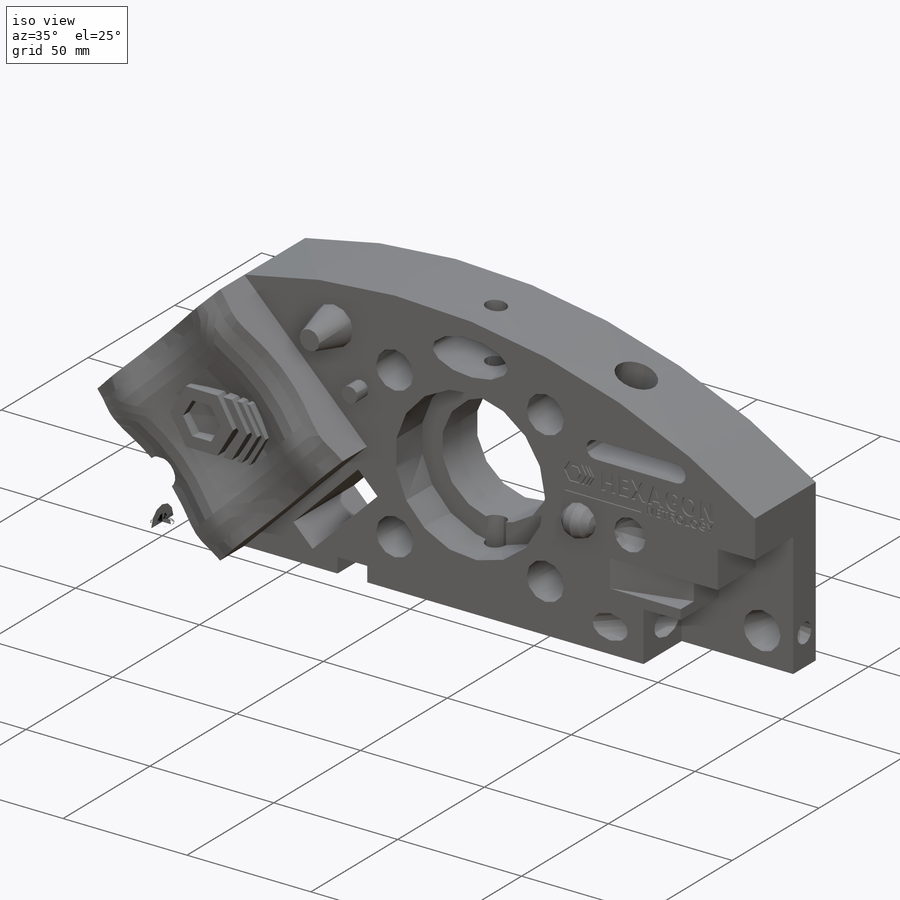
[diagram: iso view]
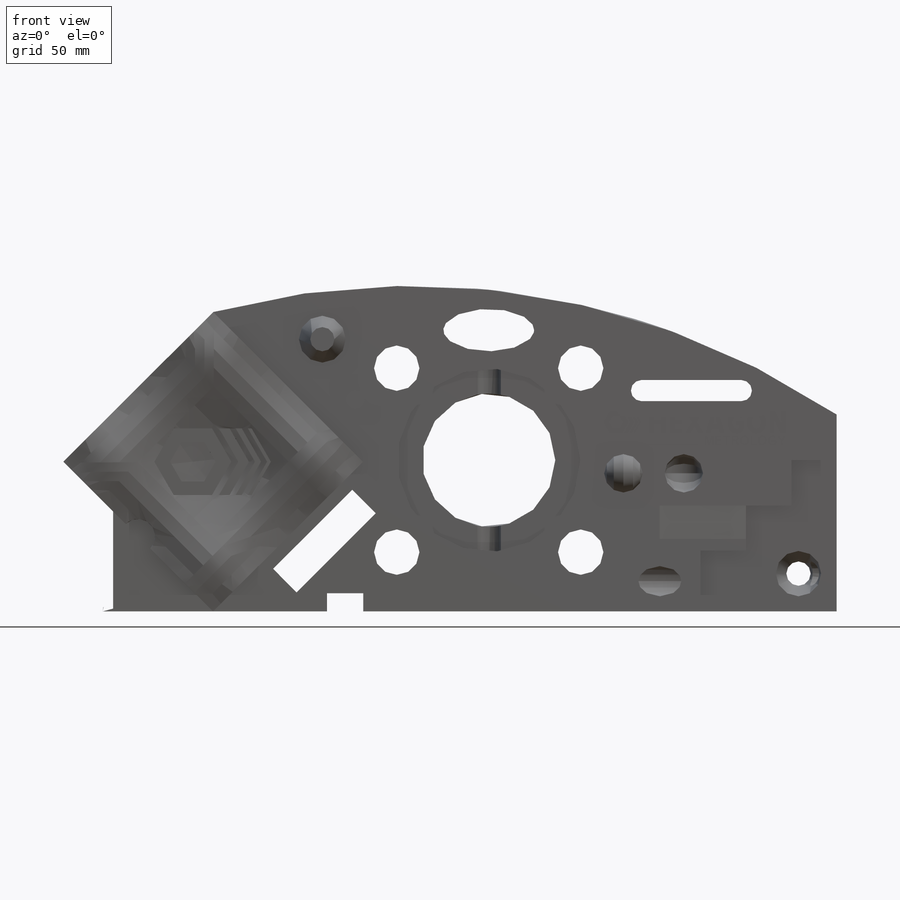
[diagram: front view]
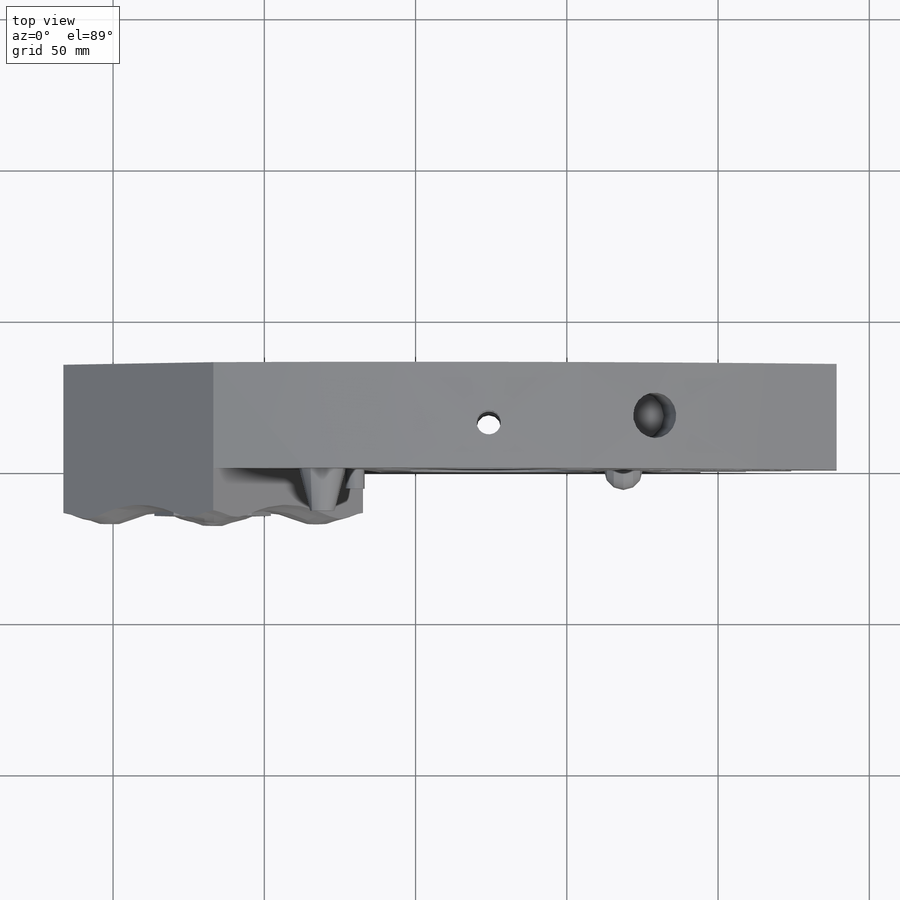
[diagram: top view]
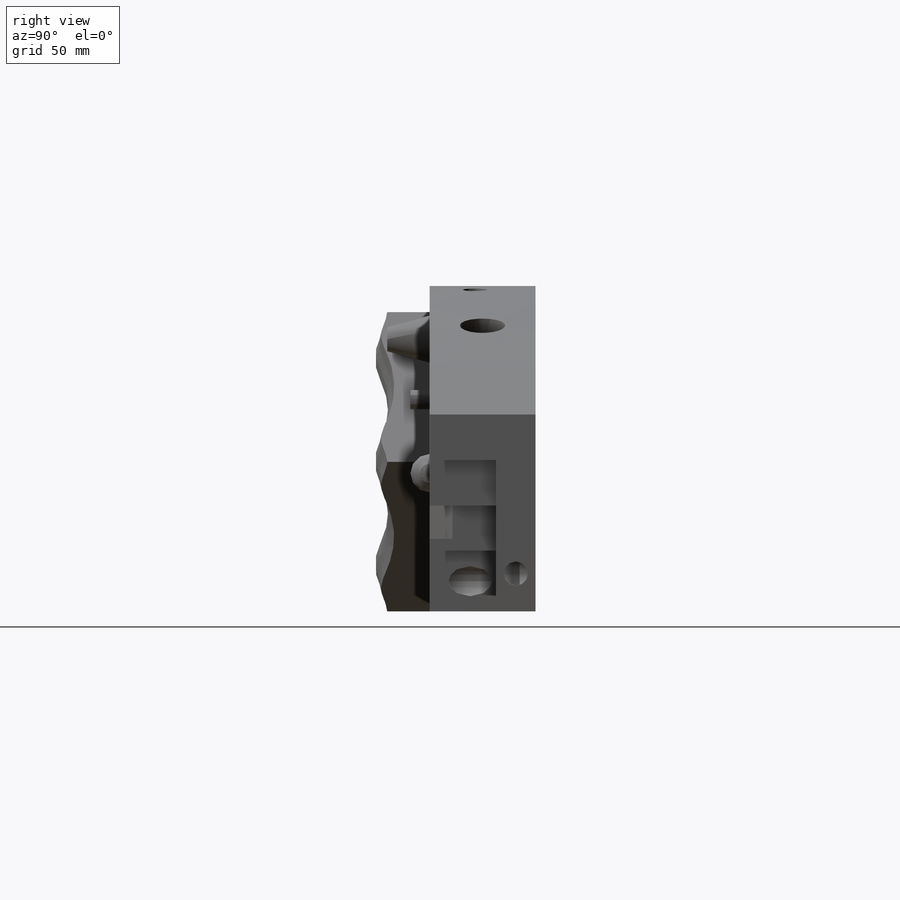
[diagram: right view]
SOLIDWORKS PART (.sldprt)
format: sldprt  version: not decoded by parser v0  size: 2,626,048 bytes
history: native  units: mm
features: sketch x60, cut_extrude x34, extrude x14, hole x3, plane x3, material x1, pattern_circular x1, cut_revolve x1, revolve x1, move_body x1 (+15 scaffold rows collapsed; 2 parser-record rows omitted)
feature tree (136):
  scaffold x15  (default folders/planes/origin — collapsed)
  material  "ABS"
  sketch  "Sketch1"  dims[c1.D2=253.25mm c1.D1=~70.426584mm c2.D1=135.0deg c3.D1=65.1mm c3.D3=70.0mm c3.D4=33.1mm c4.D3=~38.456974mm c5.D3=45.0deg c6.D3=~255.575467mm c6.D4=~33.118616mm c6.D1=70.0mm c7.D1=45.0deg c8.D1=70.0mm c9.D1=45.0deg]
  extrude  "Extrude2"  Depth=22mm
  sketch  "Sketch2"  dims[D1=70.0mm]
  cut_extrude  "Cut-Extrude1"  Depth=22mm
  sketch  "Sketch32"
  sketch  "Sketch3"  dims[c1.D1=~70.039392mm c2.D1=~44.951404deg c3.D1=~70.039392mm c4.D1=~44.951404deg c5.D1=~70.039392mm c6.D1=~44.951404deg c7.D1=0.0mm]
  extrude  "Extrude3"  Depth=14mm
  sketch  "Sketch4"  dims[D1=20.0mm]
  cut_extrude  "Cut-Extrude2"  Depth=22mm
  sketch  "Sketch5"  dims[c1.D1=115.0mm c2.D1=~134.184664deg]
  hole  "CBORE for M5 SBHCS1"  Diameter=44mm Depth=35mm
  sketch  "3DSketch1"  dims[D1=115.0mm D2=50.0mm D3=50.0mm]
  sketch  "Sketch6"  dims[hole-wizard template sketch: 41 standard entries collapsed; hole parameters kept: c12.Thru Hole Dia.=44.0mm c12.Thru Hole Depth=35.0mm c12.C'Bore Dia.=60.5mm c12.C'Bore Depth=15.0mm]
  hole  "M15.0 (15.000000) Diameter Hole2"  Diameter=15mm Depth=35mm
  sketch  "3DSketch2"
  sketch  "Sketch7"  dims[hole-wizard template sketch: 59 standard entries collapsed; hole parameters kept: c18.Thru Hole Dia.=15.0mm c18.Thru Hole Depth=35.0mm]
  pattern_circular  "CirPattern1"  Count=4 Angle=90deg
  sketch  "Sketch9"  dims[D1=~14.906114mm]
  cut_extrude  "Cut-Extrude3"  [1 undecoded]
  sketch  "Sketch10"  dims[D1=~37.687541mm]
  cut_extrude  "Cut-Extrude4"  [1 undecoded]
  sketch  "Sketch11"  dims[D1=~173.51989mm]
  extrude  "Extrude4"  Depth=14mm
  sketch  "Sketch12"  dims[D1=~64.643834mm]
  extrude  "Extrude5"  Depth=6.35mm
  sketch  "Sketch13"  dims[D1=~34.589238mm]
  cut_extrude  "Cut-Extrude5"  [1 undecoded]
  sketch  "Sketch14"  dims[D1=~45.561088mm]
  cut_revolve  "Cut-Revolve1"  Angle=360deg
  sketch  "Sketch15"  dims[D1=~71.563412mm]
  revolve  "Revolve1"  Angle=360deg
  sketch  "Sketch16"  dims[c1.D1=11.6mm c2.D1=~14.847278deg c3.D1=45.0mm c4.D1=15.0deg c5.D1=43.5mm c6.D1=15.0deg]
  cut_extrude  "Cut-Extrude6"  Depth=11mm
  sketch  "Sketch17"  dims[D1=~14.312682mm]
  cut_extrude  "Cut-Extrude7"  [1 undecoded]
  sketch  "Sketch34"  dims[D1=12.5mm]
  cut_extrude  "Cut-Extrude13"  [1 undecoded]
  hole  "CSK for M3 SFHCS1"  Diameter=8mm Depth=107.619066mm
  sketch  "3DSketch5"  dims[c1.D1=~108.926133mm c1.D3=115.0mm c1.D2=~14.119611mm c2.D1=20.0mm c2.D2=115.0mm]
  sketch  "Sketch20"  dims[hole-wizard template sketch: 57 standard entries collapsed; hole parameters kept: c17.Thru Hole Dia.=8.0mm c17.Thru Hole Depth=~107.619066mm c17.C'Sink Dia.=12.7mm c17.D4=~19.358014mm c17.C'Sink Angle=120.0deg c17.Head Clearance=6.35mm]
  sketch  "Sketch21"  dims[D1=12.0mm]
  cut_extrude  "Cut-Extrude8"  [1 undecoded]
  sketch  "Sketch22"  dims[c1.D1=~158.24682mm c2.D1=~108.429227deg]
  plane  "Plane1"
  sketch  "Sketch24"  dims[D1=~17.744613mm]
  cut_extrude  "Cut-Extrude9"  Depth=13mm
  plane  "Plane2"
  sketch  "Sketch26"  dims[c1.D1=~14.367345mm c2.D1=90.0deg c3.D1=10.0mm c4.D1=135.0deg c5.D1=10.0mm]
  plane  "Plane4"
  sketch  "Sketch28"  dims[D1=~4.643965mm]
  cut_extrude  "Cut-Extrude11"  [1 undecoded]
  sketch  "Sketch31"  dims[D1=~16.216671mm]
  cut_extrude  "Cut-Extrude12"  [1 undecoded]
  move_body  "Body-Move/Copy2"
  parser-record x2  (decoder bookkeeping rows leaked as tree rows — omitted from the tree; the rows remain in map.json)
  sketch  "3DSketch6"  dims[D1=12.702mm]
  extrude  "Boss-Extrude1"  Depth=10mm
  sketch  "3DSketch7"  dims[D1=7.506mm]
  cut_extrude  "Cut-Extrude14"  [1 undecoded]
  sketch  "3DSketch8"  dims[D1=3.5mm]
  extrude  "Boss-Extrude2"  [1 undecoded]
  sketch  "3DSketch9"  dims[D1=2.0mm]
  extrude  "Boss-Extrude3"  [1 undecoded]
  sketch  "3DSketch10"  dims[D1=1.25mm]
  extrude  "Boss-Extrude4"  [1 undecoded]
  sketch  "3DSketch11"
  cut_extrude  "Cut-Extrude15"  Depth=0.5mm
  sketch  "3DSketch12"
  extrude  "Boss-Extrude5"  Depth=0.5mm
  sketch  "3DSketch13"
  cut_extrude  "Cut-Extrude17"  Depth=0.5mm
  sketch  "3DSketch14"
  cut_extrude  "Cut-Extrude18"  Depth=0.5mm
  sketch  "3DSketch15"
  cut_extrude  "Cut-Extrude19"  Depth=0.5mm
  sketch  "3DSketch16"
  cut_extrude  "Cut-Extrude20"  Depth=0.5mm
  sketch  "3DSketch17"
  cut_extrude  "Cut-Extrude21"  Depth=0.5mm
  sketch  "3DSketch18"
  cut_extrude  "Cut-Extrude22"  Depth=0.5mm
  sketch  "3DSketch19"
  cut_extrude  "Cut-Extrude23"  Depth=0.5mm
  sketch  "3DSketch20"
  extrude  "Boss-Extrude6"  Depth=0.5mm
  sketch  "3DSketch21"
  cut_extrude  "Cut-Extrude25"  Depth=0.5mm
  sketch  "3DSketch22"
  cut_extrude  "Cut-Extrude26"  Depth=0.5mm
  sketch  "3DSketch23"
  extrude  "Boss-Extrude7"  Depth=0.5mm
  sketch  "3DSketch24"
  cut_extrude  "Cut-Extrude27"  Depth=0.5mm
  sketch  "3DSketch25"
  cut_extrude  "Cut-Extrude28"  Depth=0.5mm
  sketch  "3DSketch26"
  cut_extrude  "Cut-Extrude29"  Depth=0.5mm
  sketch  "3DSketch27"
  cut_extrude  "Cut-Extrude30"  Depth=0.5mm
  sketch  "3DSketch28"
  cut_extrude  "Cut-Extrude31"  Depth=0.5mm
  sketch  "3DSketch29"
  cut_extrude  "Cut-Extrude32"  Depth=0.5mm
  sketch  "3DSketch31"
  extrude  "Boss-Extrude8"  Depth=0.5mm
  sketch  "3DSketch32"
  cut_extrude  "Cut-Extrude33"  Depth=0.5mm
  sketch  "3DSketch33"
  extrude  "Boss-Extrude9"  Depth=0.5mm
  sketch  "3DSketch34"
  cut_extrude  "Cut-Extrude34"  Depth=0.5mm
  sketch  "3DSketch35"
  cut_extrude  "Cut-Extrude35"  Depth=0.5mm
  sketch  "3DSketch36"
  extrude  "Boss-Extrude10"  Depth=0.5mm
  sketch  "3DSketch37"
  cut_extrude  "Cut-Extrude36"  Depth=0.5mm
  sketch  "3DSketch38"
  cut_extrude  "Cut-Extrude37"  Depth=0.5mm
decode coverage: 73 of 115 modeling features carry decoded parameters
note: ~ marks probable driven/reference dimensions
note: 12 parameter values undecoded
summary: no parameter record found for 12 features
note: suppression state not decoded; provenance and decode notes live in map.json
